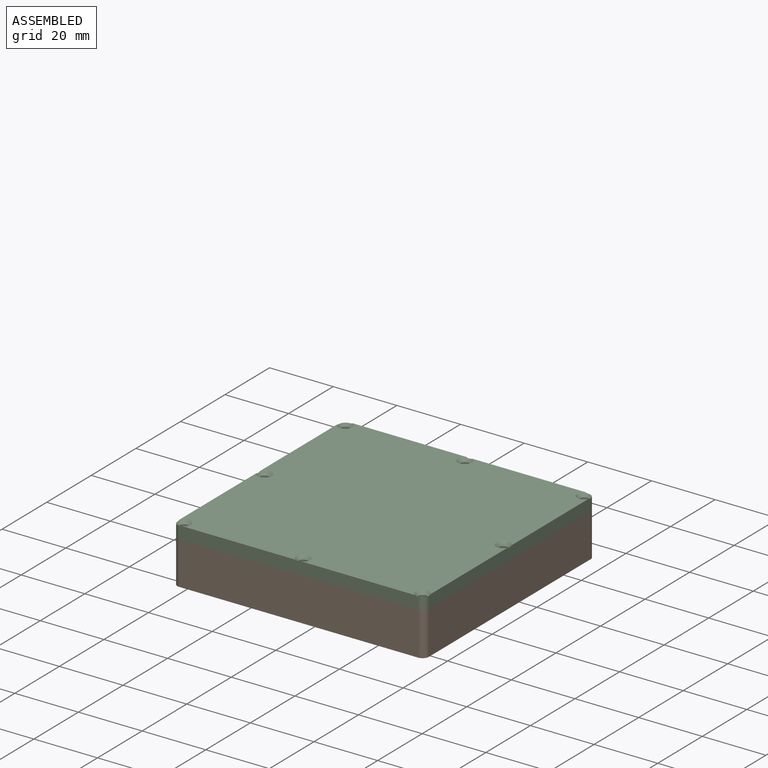
[diagram: assembled view]
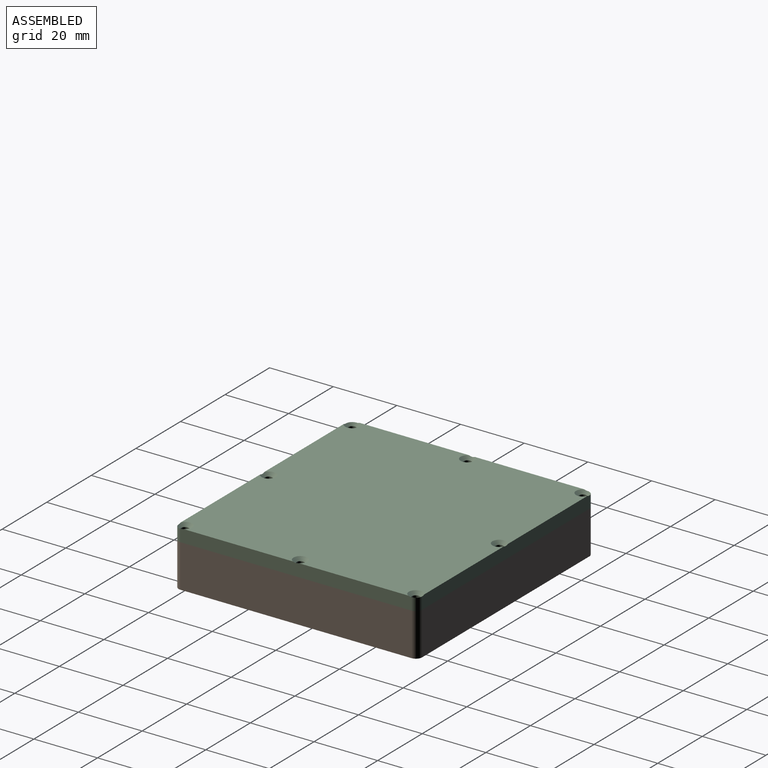
[diagram: assembled view, second angle]
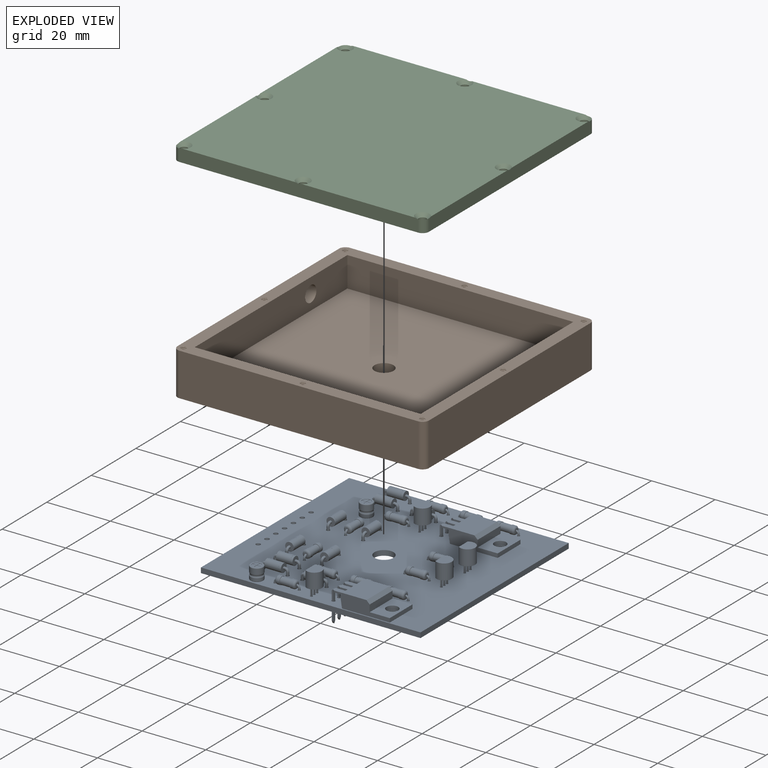
[diagram: exploded view]
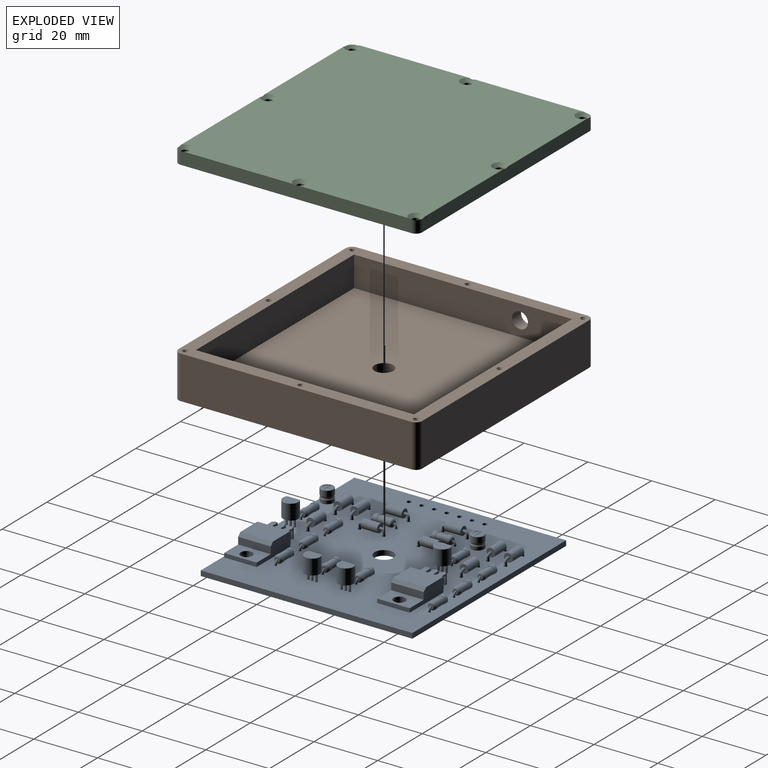
[diagram: exploded view, second angle]
FCSTD DOCUMENT  (FreeCAD 0.20R29603 (Git))
Label: case-v2
License: All rights reserved
LicenseURL: http://en.wikipedia.org/wiki/All_rights_reserved
objects: App::Link×25, Part::Feature×11, Sketcher::SketchObject×6, PartDesign::Hole×4, App::Part×4, PartDesign::Pad×2, PartDesign::Body×2, Mesh::Feature×2, Spreadsheet::Sheet×1, PartDesign::Thickness×1, PartDesign::Fillet×1, PartDesign::CoordinateSystem×1, PartDesign::ShapeBinder×1
note: 37 computed .brp shape members not serialized (recipe doc carries the construction recipe); baked Part::Feature solids carry a one-line shape summary decoded from their .brp

FEATURE [Sketcher::SketchObject] Sketch
  FullyConstrained = true
  MapMode = 5
  Support = -> [XY_Plane]
  expr: Constraints[8] = Spreadsheet.pcb_length + Spreadsheet.clearance * 2
  expr: Constraints[9] = Spreadsheet.pcb_width + Spreadsheet.clearance * 2
  sketch-geometry (4):
    g0: LineSegment StartX=-35.5 StartY=34.25 StartZ=0 EndX=35.5 EndY=34.25 EndZ=0
    g1: LineSegment StartX=35.5 StartY=34.25 StartZ=0 EndX=35.5 EndY=-34.25 EndZ=0
    g2: LineSegment StartX=35.5 StartY=-34.25 StartZ=0 EndX=-35.5 EndY=-34.25 EndZ=0
    g3: LineSegment StartX=-35.5 StartY=-34.25 StartZ=0 EndX=-35.5 EndY=34.25 EndZ=0
  constraints (10):
    c: Coincident(g0,g1)
    c: Coincident(g1,g2)
    c: Coincident(g2,g3)
    c: Coincident(g3,g0)
    c: Horizontal(g2)
    c: Vertical(g3)
    c: Symmetric(g0,g0,g-2)
    c: Symmetric(g0,g1,g-1)
    c: DistanceX(g0,g0) = 71
    c: DistanceY(g1,g0) = 68.5
FEATURE [Spreadsheet::Sheet] Spreadsheet
  cells = A1=pcb_length; B1(pcb_length)=69; A2=pcb_width; B2(pcb_width)=66.5; A3=pcb_tickness; B3(pcb_tickness)=1.7; A4=wall_tickness; B4(wall_tickness)=4; A5=clearance; B5(clearance)=1; A6=screw_hole; B6(screw_hole)=1; A7=screw_length; B7(screw_length)=10; A8=mount_hole; B8(mount_hole)=6; A9=top_component_height; B9(top_component_height)=5; A10=bottom_component_height; B10(bottom_component_height)=0.5; A11=wire_hole; B11(wire_hole)=5
FEATURE [PartDesign::Pad] Pad
  Direction = (0,0,1)
  Length = 9.5
  Length2 = 10
  Profile = -> Sketch
  ReferenceAxis = -> Sketch [N_Axis]
  Type = 0
  expr: Length = Spreadsheet.wall_tickness + Spreadsheet.bottom_component_height + Spreadsheet.top_component_height
FEATURE [PartDesign::Thickness] Thickness
  Base = -> Pad [Face6]
  BaseFeature = -> Pad
  Intersection = false
  Join = 1
  Mode = 0
  SupportTransform = false
  Value = 4
  expr: Value = Spreadsheet.wall_tickness
FEATURE [PartDesign::Fillet] Fillet
  Base = -> Thickness [Edge18,Edge17,Edge22,Edge20]
  BaseFeature = -> Thickness
  Radius = 2
  SupportTransform = false
  UseAllEdges = false
FEATURE [Sketcher::SketchObject] Sketch001
  ExternalGeometry = -> [Fillet]
  FullyConstrained = true
  MapMode = 5
  Placement = pos=(0,0,9.5) rot=(0,0,1;0rad)
  Support = -> [Fillet]
  expr: Constraints[0] = Spreadsheet.screw_hole
  expr: Constraints[15] = (Spreadsheet.pcb_width + Spreadsheet.wall_tickness + Spreadsheet.clearance * 2) / 2
  expr: Constraints[16] = (Spreadsheet.pcb_length + Spreadsheet.wall_tickness + Spreadsheet.clearance * 2) / 2
  expr: Constraints[17] = (Spreadsheet.pcb_length + Spreadsheet.wall_tickness + Spreadsheet.clearance * 2) / 2
  expr: Constraints[18] = (Spreadsheet.pcb_width + Spreadsheet.wall_tickness + Spreadsheet.clearance * 2) / 2
  sketch-geometry (8):
    g0: Circle CenterX=-37.5 CenterY=36.25 CenterZ=0 NormalX=0 NormalY=0 NormalZ=1 AngleXU=0 Radius=0.5
    g1: Circle CenterX=0 CenterY=36.25 CenterZ=0 NormalX=0 NormalY=0 NormalZ=1 AngleXU=0 Radius=0.5
    g2: Circle CenterX=37.5 CenterY=36.25 CenterZ=0 NormalX=0 NormalY=0 NormalZ=1 AngleXU=0 Radius=0.5
    g3: Circle CenterX=37.5 CenterY=0 CenterZ=0 NormalX=0 NormalY=0 NormalZ=1 AngleXU=0 Radius=0.5
    g4: Circle CenterX=37.5 CenterY=-36.25 CenterZ=0 NormalX=0 NormalY=0 NormalZ=1 AngleXU=0 Radius=0.5
    g5: Circle CenterX=0 CenterY=-36.25 CenterZ=0 NormalX=0 NormalY=0 NormalZ=1 AngleXU=0 Radius=0.5
    g6: Circle CenterX=-37.5 CenterY=-36.25 CenterZ=0 NormalX=0 NormalY=0 NormalZ=1 AngleXU=0 Radius=0.5
    g7: Circle CenterX=-37.5 CenterY=0 CenterZ=0 NormalX=0 NormalY=0 NormalZ=1 AngleXU=0 Radius=0.5
  constraints (19):
    c: Diameter(g0) = 1
    c: Equal(g0,g1)
    c: Equal(g1,g2)
    c: Equal(g2,g3)
    c: Equal(g3,g4)
    c: Equal(g4,g5)
    c: Equal(g5,g6)
    c: Equal(g6,g7)
    c: PointOnObject(g1,g-2)
    c: PointOnObject(g3,g-1)
    c: Symmetric(g5,g1,g-1)
    c: Symmetric(g7,g3,g-2)
    c: Symmetric(g0,g2,g-2)
    c: Symmetric(g2,g4,g-1)
    c: Symmetric(g4,g6,g-2)
    c: DistanceY(g-1,g1) = 36.25
    c: DistanceX(g7,g-1) = 37.5
    c: DistanceX(g0,g1) = 37.5
    c: DistanceY(g7,g0) = 36.25
FEATURE [PartDesign::Hole] Hole
  BaseFeature = -> Fillet
  CustomThreadClearance = 0
  Depth = 6
  DepthType = 0
  Diameter = 1.619
  DrillForDepth = false
  DrillPoint = 1
  DrillPointAngle = 118
  HoleCutCountersinkAngle = 90
  HoleCutCustomValues = false
  HoleCutDepth = 0
  HoleCutDiameter = 3.2
  HoleCutType = 0
  ModelThread = true
  Profile = -> Sketch001
  Tapered = false
  TaperedAngle = 90
  ThreadClass = 0
  ThreadDepth = 6
  ThreadDepthType = 0
  ThreadDirection = 0
  ThreadFit = 0
  ThreadSize = 6
  ThreadType = 1
  Threaded = true
  UseCustomThreadClearance = false
  expr: Depth = Spreadsheet.screw_length - Spreadsheet.wall_tickness
FEATURE [Sketcher::SketchObject] Sketch002
  FullyConstrained = true
  MapMode = 5
  Placement = pos=(-39.5,0,0) rot=(0.57735,-0.57735,-0.57735;2.0944rad)
  Support = -> [Hole]
  expr: Constraints[0] = (Spreadsheet.wall_tickness + Spreadsheet.top_component_height + Spreadsheet.bottom_component_height) / 2
  expr: Constraints[1] = (Spreadsheet.pcb_width + Spreadsheet.wall_tickness + Spreadsheet.clearance) / 4
  expr: Constraints[2] = Spreadsheet.wire_hole
  sketch-geometry (1):
    g0: Circle CenterX=-17.875 CenterY=4.75 CenterZ=0 NormalX=0 NormalY=0 NormalZ=1 AngleXU=0 Radius=2.5
  constraints (3):
    c: DistanceY(g-1,g0) = 4.75
    c: DistanceX(g0,g-1) = 17.875
    c: Diameter(g0) = 5
FEATURE [PartDesign::Hole] Hole001
  BaseFeature = -> Hole
  CustomThreadClearance = 0
  Depth = 4
  DepthType = 0
  Diameter = 5
  DrillForDepth = false
  DrillPoint = 1
  DrillPointAngle = 118
  HoleCutCountersinkAngle = 90
  HoleCutCustomValues = false
  HoleCutDepth = 0
  HoleCutDiameter = 10.1
  HoleCutType = 0
  ModelThread = false
  Profile = -> Sketch002
  Tapered = false
  TaperedAngle = 90
  ThreadClass = 0
  ThreadDepth = 4
  ThreadDepthType = 0
  ThreadDirection = 0
  ThreadFit = 0
  ThreadSize = 0
  ThreadType = 0
  Threaded = false
  UseCustomThreadClearance = false
  expr: Depth = Spreadsheet.wall_tickness
  expr: Diameter = Spreadsheet.wire_hole
FEATURE [PartDesign::CoordinateSystem] Local_CS_c8d7
  AttacherType = Attacher::AttachEngine3D
  MapMode = 2
  Support = -> [X_Axis001]
FEATURE [Part::Feature] Pcb_c8d7
  Placement = pos=(-145.75,97.75,0) rot=(0,0,1;0rad)
  shape: bbox 69 x 66.5 x 1.6 mm, 82 faces (baked)
FEATURE [Sketcher::SketchObject] PCB_Sketch_c8d7
  FullyConstrained = false
  sketch-geometry (4):
    g0: LineSegment StartX=-34.25 StartY=33.25 StartZ=0 EndX=34.75 EndY=33.25 EndZ=0
    g1: LineSegment StartX=34.75 StartY=33.25 StartZ=0 EndX=34.75 EndY=-33.25 EndZ=0
    g2: LineSegment StartX=34.75 StartY=-33.25 StartZ=0 EndX=-34.25 EndY=-33.25 EndZ=0
    g3: LineSegment StartX=-34.25 StartY=-33.25 StartZ=0 EndX=-34.25 EndY=33.25 EndZ=0
  constraints (4):
    c: Coincident(g2,g3)
    c: Coincident(g0,g3)
    c: Coincident(g1,g2)
    c: Coincident(g0,g1)
FEATURE [Part::Feature] topPads_c8d7_  label="topPads_c8d7_cut"
  Placement = pos=(0,0,0.02) rot=(0,0,1;0rad)
  shape: bbox 55.45 x 62.66 x 2e-07 mm, 78 faces, 0 solids (baked)
FEATURE [Part::Feature] Shape005001  label="topTracks_c8d7"
  Placement = pos=(-145.75,97.75,0.01) rot=(0,0,1;0rad)
  shape: bbox 57 x 63.75 x 2e-07 mm, 30 faces, 0 solids (baked)
FEATURE [Part::Feature] pads_area002001  label="botPads_c8d7"
  Placement = pos=(-145.75,97.75,-1.62) rot=(0,0,1;0rad)
  shape: bbox 55.45 x 62.66 x 2e-07 mm, 78 faces, 0 solids (baked)
FEATURE [Part::Feature] Shape005002001  label="botTracks_c8d7"
  Placement = pos=(-145.75,97.75,-1.61) rot=(0,0,1;0rad)
  shape: bbox 50 x 58.71 x 2e-07 mm, 4 faces, 0 solids (baked)
FEATURE [Part::Feature] zones_area001  label="botZones_c8d7"
  Placement = pos=(-145.75,97.75,-1.61) rot=(0,0,1;0rad)
  shape: bbox 69.05 x 66.55 x 2e-07 mm, 1 faces, 0 solids (baked)
FEATURE [App::Part] Board_Geoms_c8d7
  Group = -> [Pcb_c8d7,PCB_Sketch_c8d7,topPads_c8d7_,Shape005001,pads_area002001,Shape005002001,zones_area001]
  Origin = -> Origin006
FEATURE [Part::Feature] Shape  label="R3_R_Axial_DIN0207_L63mm_D25mm_P762mm_Horizontal_1e18375bcd3e"
  Placement = pos=(-8.08,29.46,0) rot=(0,0,1;0rad)
  shape: bbox 8.418 x 2.706 x 5.603 mm, 15 faces (baked)
FEATURE [Part::Feature] Shape001  label="Q1_TO-220-3_Horizontal_TabDown_f7af02cd9c6e"
  Placement = pos=(5.5,23,0) rot=(0,0,-1;1.5708rad)
  shape: bbox 19.74 x 10.25 x 10.78 mm, 80 faces (baked)
FEATURE [Part::Feature] Shape002  label="D6_D_DO-41_SOD81_P7.62mm_Horizontal_46b4c7cf1055"
  Placement = pos=(-13.12,-24.5,0) rot=(0,0,1;3.14159rad)
  shape: bbox 8.618 x 2.72 x 5.71 mm, 15 faces (baked)
FEATURE [App::Link] Q1_TO_220_3_Horizontal_TabDown_f7af02cd9c6e_ln_  label="Q4_TO-220-3_Horizontal_TabDown_02366ac9f945"
  LinkPlacement = pos=(5.34,-25.21,0) rot=(0,0,-1;1.5708rad)
  LinkedObject = -> Shape001
  Placement = pos=(5.34,-25.21,0) rot=(0,0,-1;1.5708rad)
FEATURE [App::Link] R3_R_Axial_DIN0207_L63mm_D25mm_P762mm_Horizontal_1e18375bcd3e_ln_  label="R11_R_Axial_DIN0207_L63mm_D25mm_P762mm_Horizontal_3a0907cc9882"
  LinkPlacement = pos=(10.94,4.25,0) rot=(0,0,1;0rad)
  LinkedObject = -> Shape
  Placement = pos=(10.94,4.25,0) rot=(0,0,1;0rad)
FEATURE [App::Link] D6_D_DO_41_SOD81_P7_62mm_Horizontal_46b4c7cf1055_ln_  label="D4_D_DO-41_SOD81_P7.62mm_Horizontal_83c747f65dec"
  LinkPlacement = pos=(-9.5,4.19,0) rot=(0,0,1;1.5708rad)
  LinkedObject = -> Shape002
  Placement = pos=(-9.5,4.19,0) rot=(0,0,1;1.5708rad)
FEATURE [Part::Feature] Shape003  label="Q6_TO-92_Inline_Narrow_4295cf9a86ac"
  Placement = pos=(23.25,-4.96,0) rot=(0,0,-1;1.5708rad)
  shape: bbox 3.745 x 4.83 x 9.8 mm, 19 faces (baked)
FEATURE [App::Link] D6_D_DO_41_SOD81_P7_62mm_Horizontal_46b4c7cf1055_ln_001  label="D9_D_DO-41_SOD81_P7.62mm_Horizontal_01c451956be8"
  LinkPlacement = pos=(-20.5,-6.69,0) rot=(0,0,-1;1.5708rad)
  LinkedObject = -> Shape002
  Placement = pos=(-20.5,-6.69,0) rot=(0,0,-1;1.5708rad)
FEATURE [App::Link] R3_R_Axial_DIN0207_L63mm_D25mm_P762mm_Horizontal_1e18375bcd3e_ln_001  label="R4_R_Axial_DIN0207_L63mm_D25mm_P762mm_Horizontal_c26d8823b796"
  LinkPlacement = pos=(-12.39,17.96,0) rot=(0,0,1;0rad)
  LinkedObject = -> Shape
  Placement = pos=(-12.39,17.96,0) rot=(0,0,1;0rad)
FEATURE [App::Link] Q6_TO_92_Inline_Narrow_4295cf9a86ac_ln_  label="Q2_TO-92_Inline_Narrow_b1d82febfd42"
  LinkPlacement = pos=(-0.52,19.25,0) rot=(0,0,-1;1.5708rad)
  LinkedObject = -> Shape003
  Placement = pos=(-0.52,19.25,0) rot=(0,0,-1;1.5708rad)
FEATURE [App::Link] Q6_TO_92_Inline_Narrow_4295cf9a86ac_ln_001  label="Q3_TO-92_Inline_Narrow_eaa337063381"
  LinkPlacement = pos=(-0.93,-28.71,0) rot=(0,0,-1;1.5708rad)
  LinkedObject = -> Shape003
  Placement = pos=(-0.93,-28.71,0) rot=(0,0,-1;1.5708rad)
FEATURE [App::Link] D6_D_DO_41_SOD81_P7_62mm_Horizontal_46b4c7cf1055_ln_002  label="D7_D_DO-41_SOD81_P7.62mm_Horizontal_83cfbd3a0cc8"
  LinkPlacement = pos=(-13.12,-19.25,0) rot=(0,0,1;3.14159rad)
  LinkedObject = -> Shape002
  Placement = pos=(-13.12,-19.25,0) rot=(0,0,1;3.14159rad)
FEATURE [App::Link] R3_R_Axial_DIN0207_L63mm_D25mm_P762mm_Horizontal_1e18375bcd3e_ln_002  label="R2_R_Axial_DIN0207_L63mm_D25mm_P762mm_Horizontal_af5f3716a1f1"
  LinkPlacement = pos=(3.05,29.46,0) rot=(0,0,1;0rad)
  LinkedObject = -> Shape
  Placement = pos=(3.05,29.46,0) rot=(0,0,1;0rad)
FEATURE [Part::Feature] Shape004  label="C1_CP_Radial_D40mm_P150mm_bc90b0e69caf"
  Placement = pos=(-17.52,17.9326,0) rot=(0,0,-1;1.5708rad)
  shape: bbox 5.212 x 4.924 x 6 mm, 54 faces (baked)
FEATURE [App::Link] D6_D_DO_41_SOD81_P7_62mm_Horizontal_46b4c7cf1055_ln_003  label="D5_D_DO-41_SOD81_P7.62mm_Horizontal_116156a9d47f"
  LinkPlacement = pos=(-9.5,-6.69,0) rot=(0,0,-1;1.5708rad)
  LinkedObject = -> Shape002
  Placement = pos=(-9.5,-6.69,0) rot=(0,0,-1;1.5708rad)
FEATURE [App::Link] D6_D_DO_41_SOD81_P7_62mm_Horizontal_46b4c7cf1055_ln_004  label="D1_D_DO-41_SOD81_P7.62mm_Horizontal_71b091f2c2fb"
  LinkPlacement = pos=(-12.52,29.46,0) rot=(0,0,1;3.14159rad)
  LinkedObject = -> Shape002
  Placement = pos=(-12.52,29.46,0) rot=(0,0,1;3.14159rad)
FEATURE [App::Link] D6_D_DO_41_SOD81_P7_62mm_Horizontal_46b4c7cf1055_ln_005  label="D2_D_DO-41_SOD81_P7.62mm_Horizontal_aa6658375ccc"
  LinkPlacement = pos=(-12.46,23.96,0) rot=(0,0,1;3.14159rad)
  LinkedObject = -> Shape002
  Placement = pos=(-12.46,23.96,0) rot=(0,0,1;3.14159rad)
FEATURE [App::Link] R3_R_Axial_DIN0207_L63mm_D25mm_P762mm_Horizontal_1e18375bcd3e_ln_003  label="R5_R_Axial_DIN0207_L63mm_D25mm_P762mm_Horizontal_b70b3c014e7c"
  LinkPlacement = pos=(-15,4.19,0) rot=(0,0,1;1.5708rad)
  LinkedObject = -> Shape
  Placement = pos=(-15,4.19,0) rot=(0,0,1;1.5708rad)
FEATURE [App::Link] R3_R_Axial_DIN0207_L63mm_D25mm_P762mm_Horizontal_1e18375bcd3e_ln_004  label="R8_R_Axial_DIN0207_L63mm_D25mm_P762mm_Horizontal_a237eb8067c1"
  LinkPlacement = pos=(-13.24,-29.98,0) rot=(0,0,1;0rad)
  LinkedObject = -> Shape
  Placement = pos=(-13.24,-29.98,0) rot=(0,0,1;0rad)
FEATURE [App::Link] D6_D_DO_41_SOD81_P7_62mm_Horizontal_46b4c7cf1055_ln_006  label="D8_D_DO-41_SOD81_P7.62mm_Horizontal_8c57185707b7"
  LinkPlacement = pos=(-8.49,-24.5,0) rot=(0,0,1;0rad)
  LinkedObject = -> Shape002
  Placement = pos=(-8.49,-24.5,0) rot=(0,0,1;0rad)
FEATURE [App::Link] R3_R_Axial_DIN0207_L63mm_D25mm_P762mm_Horizontal_1e18375bcd3e_ln_005  label="R7_R_Axial_DIN0207_L63mm_D25mm_P762mm_Horizontal_04880ca75601"
  LinkPlacement = pos=(-8.49,-19.25,0) rot=(0,0,1;0rad)
  LinkedObject = -> Shape
  Placement = pos=(-8.49,-19.25,0) rot=(0,0,1;0rad)
FEATURE [App::Link] D6_D_DO_41_SOD81_P7_62mm_Horizontal_46b4c7cf1055_ln_007  label="D3_D_DO-41_SOD81_P7.62mm_Horizontal_6566e7aa2dd4"
  LinkPlacement = pos=(-8.08,23.96,0) rot=(0,0,1;0rad)
  LinkedObject = -> Shape002
  Placement = pos=(-8.08,23.96,0) rot=(0,0,1;0rad)
FEATURE [App::Link] R3_R_Axial_DIN0207_L63mm_D25mm_P762mm_Horizontal_1e18375bcd3e_ln_006  label="R12_R_Axial_DIN0207_L63mm_D25mm_P762mm_Horizontal_f3dff05b9fc6"
  LinkPlacement = pos=(10.94,-6.25,0) rot=(0,0,1;0rad)
  LinkedObject = -> Shape
  Placement = pos=(10.94,-6.25,0) rot=(0,0,1;0rad)
FEATURE [App::Link] R3_R_Axial_DIN0207_L63mm_D25mm_P762mm_Horizontal_1e18375bcd3e_ln_007  label="R10_R_Axial_DIN0207_L63mm_D25mm_P762mm_Horizontal_d2c18f2fd916"
  LinkPlacement = pos=(13.45,-19.25,0) rot=(0,0,1;0rad)
  LinkedObject = -> Shape
  Placement = pos=(13.45,-19.25,0) rot=(0,0,1;0rad)
FEATURE [App::Link] R3_R_Axial_DIN0207_L63mm_D25mm_P762mm_Horizontal_1e18375bcd3e_ln_008  label="R1_R_Axial_DIN0207_L63mm_D25mm_P762mm_Horizontal_7ae7692dc5d3"
  LinkPlacement = pos=(14.05,29.46,0) rot=(0,0,1;0rad)
  LinkedObject = -> Shape
  Placement = pos=(14.05,29.46,0) rot=(0,0,1;0rad)
FEATURE [App::Link] R3_R_Axial_DIN0207_L63mm_D25mm_P762mm_Horizontal_1e18375bcd3e_ln_009  label="R6_R_Axial_DIN0207_L63mm_D25mm_P762mm_Horizontal_38b9a4ad471c"
  LinkPlacement = pos=(-15,-6.69,0) rot=(0,0,-1;1.5708rad)
  LinkedObject = -> Shape
  Placement = pos=(-15,-6.69,0) rot=(0,0,-1;1.5708rad)
FEATURE [App::Link] Q6_TO_92_Inline_Narrow_4295cf9a86ac_ln_002  label="Q5_TO-92_Inline_Narrow_467efc66c74b"
  LinkPlacement = pos=(23.25,5.54,0) rot=(0,0,-1;1.5708rad)
  LinkedObject = -> Shape003
  Placement = pos=(23.25,5.54,0) rot=(0,0,-1;1.5708rad)
FEATURE [App::Link] R3_R_Axial_DIN0207_L63mm_D25mm_P762mm_Horizontal_1e18375bcd3e_ln_010  label="R9_R_Axial_DIN0207_L63mm_D25mm_P762mm_Horizontal_b4799f0ccb3a"
  LinkPlacement = pos=(2.6,-19.2,0) rot=(0,0,1;0rad)
  LinkedObject = -> Shape
  Placement = pos=(2.6,-19.2,0) rot=(0,0,1;0rad)
FEATURE [App::Link] D6_D_DO_41_SOD81_P7_62mm_Horizontal_46b4c7cf1055_ln_008  label="D10_D_DO-41_SOD81_P7.62mm_Horizontal_64ace328d858"
  LinkPlacement = pos=(-20.5,4.19,0) rot=(0,0,1;1.5708rad)
  LinkedObject = -> Shape002
  Placement = pos=(-20.5,4.19,0) rot=(0,0,1;1.5708rad)
FEATURE [App::Link] C1_CP_Radial_D40mm_P150mm_bc90b0e69caf_ln_  label="C2_CP_Radial_D40mm_P150mm_d567f8db9309"
  LinkPlacement = pos=(-18.43,-30,0) rot=(0,0,-1;1.5708rad)
  LinkedObject = -> Shape004
  Placement = pos=(-18.43,-30,0) rot=(0,0,-1;1.5708rad)
FEATURE [App::Part] Top_c8d7
  Group = -> [Shape,Shape001,Shape002,Q1_TO_220_3_Horizontal_TabDown_f7af02cd9c6e_ln_,R3_R_Axial_DIN0207_L63mm_D25mm_P762mm_Horizontal_1e18375bcd3e_ln_,D6_D_DO_41_SOD81_P7_62mm_Horizontal_46b4c7cf1055_ln_,Shape003,D6_D_DO_41_SOD81_P7_62mm_Horizontal_46b4c7cf1055_ln_001,R3_R_Axial_DIN0207_L63mm_D25mm_P762mm_Horizontal_1e18375bcd3e_ln_001,Q6_TO_92_Inline_Narrow_4295cf9a86ac_ln_,+20 more]
  Origin = -> Origin003
FEATURE [App::Part] Step_Models_c8d7
  Group = -> [Top_c8d7]
  Origin = -> Origin002
FEATURE [App::Part] Board_c8d7  label="side-markers-blinker"
  Group = -> [Local_CS_c8d7,Board_Geoms_c8d7,Step_Models_c8d7]
  Origin = -> Origin001
  Placement = pos=(0,0,0.5) rot=(0,0,1;0rad)
  expr: .Placement.Base.z = Spreadsheet.bottom_component_height
FEATURE [Sketcher::SketchObject] Sketch006
  FullyConstrained = true
  MapMode = 5
  Support = -> [XY_Plane]
  expr: Constraints[1] = Spreadsheet.mount_hole
  sketch-geometry (1):
    g0: Circle CenterX=0 CenterY=0 CenterZ=0 NormalX=0 NormalY=0 NormalZ=1 AngleXU=0 Radius=3
  constraints (2):
    c: Coincident(g0,g-1)
    c: Diameter(g0) = 6
FEATURE [PartDesign::Hole] Hole005
  BaseFeature = -> Hole001
  CustomThreadClearance = 0
  Depth = 4
  DepthType = 0
  Diameter = 6
  DrillForDepth = false
  DrillPoint = 1
  DrillPointAngle = 118
  HoleCutCountersinkAngle = 90
  HoleCutCustomValues = false
  HoleCutDepth = 0
  HoleCutDiameter = 6.1
  HoleCutType = 0
  ModelThread = false
  Profile = -> Sketch006
  Tapered = false
  TaperedAngle = 90
  ThreadClass = 0
  ThreadDepth = 4
  ThreadDepthType = 0
  ThreadDirection = 0
  ThreadFit = 0
  ThreadSize = 0
  ThreadType = 0
  Threaded = false
  UseCustomThreadClearance = false
  expr: Depth = Spreadsheet.wall_tickness
  expr: Diameter = Spreadsheet.mount_hole
FEATURE [PartDesign::Body] Body  label="Base"
  Group = -> [Sketch,Pad,Thickness,Fillet,Sketch001,Hole,Sketch002,Hole001,Sketch006,Hole005]
  Origin = -> Origin
  Tip = -> Hole005
FEATURE [PartDesign::ShapeBinder] ShapeBinder
  Support = -> [Hole005]
  TraceSupport = false
FEATURE [PartDesign::Pad] Pad001
  Direction = (0,0,1)
  Length = 4
  Length2 = 10
  Profile = -> ShapeBinder
  Type = 0
  expr: Length = Spreadsheet.wall_tickness
FEATURE [Sketcher::SketchObject] Sketch005
  ExternalGeometry = -> [Pad001]
  FullyConstrained = true
  MapMode = 5
  Placement = pos=(0,0,13.5) rot=(0,0,1;0rad)
  Support = -> [Pad001]
  expr: Constraints[15] = (Spreadsheet.pcb_length + Spreadsheet.wall_tickness + Spreadsheet.clearance * 2) / 2
  expr: Constraints[16] = (Spreadsheet.pcb_width + Spreadsheet.wall_tickness + Spreadsheet.clearance * 2) / 2
  expr: Constraints[17] = Spreadsheet.wall_tickness / 2
  expr: Constraints[18] = Spreadsheet.wall_tickness / 2
  expr: Constraints[2] = Spreadsheet.screw_hole
  sketch-geometry (8):
    g0: Circle CenterX=-37.5 CenterY=36.25 CenterZ=0 NormalX=0 NormalY=0 NormalZ=1 AngleXU=0 Radius=0.5
    g1: Circle CenterX=0 CenterY=36.25 CenterZ=0 NormalX=0 NormalY=0 NormalZ=1 AngleXU=0 Radius=0.5
    g2: Circle CenterX=37.5 CenterY=36.25 CenterZ=0 NormalX=0 NormalY=0 NormalZ=1 AngleXU=0 Radius=0.5
    g3: Circle CenterX=37.5 CenterY=0 CenterZ=0 NormalX=0 NormalY=0 NormalZ=1 AngleXU=0 Radius=0.5
    g4: Circle CenterX=37.5 CenterY=-36.25 CenterZ=0 NormalX=0 NormalY=0 NormalZ=1 AngleXU=0 Radius=0.5
    g5: Circle CenterX=0 CenterY=-36.25 CenterZ=0 NormalX=0 NormalY=0 NormalZ=1 AngleXU=0 Radius=0.5
    g6: Circle CenterX=-37.5 CenterY=-36.25 CenterZ=0 NormalX=0 NormalY=0 NormalZ=1 AngleXU=0 Radius=0.5
    g7: Circle CenterX=-37.5 CenterY=0 CenterZ=0 NormalX=0 NormalY=0 NormalZ=1 AngleXU=0 Radius=0.5
  constraints (19):
    c: PointOnObject(g1,g-2)
    c: PointOnObject(g3,g-1)
    c: Diameter(g0) = 1
    c: Equal(g0,g1)
    c: Equal(g1,g2)
    c: Equal(g2,g3)
    c: Equal(g3,g4)
    c: Equal(g4,g5)
    c: Equal(g5,g6)
    c: Equal(g6,g7)
    c: Symmetric(g0,g2,g-2)
    c: Symmetric(g4,g2,g-1)
    c: Symmetric(g6,g4,g-2)
    c: Symmetric(g7,g3,g-2)
    c: Symmetric(g1,g5,g-1)
    c: DistanceX(g7,g-1) = 37.5
    c: DistanceY(g-1,g1) = 36.25
    c: DistanceY(g-4,g6) = 2
    c: DistanceX(g-3,g6) = 2
FEATURE [PartDesign::Hole] Hole004
  BaseFeature = -> Pad001
  CustomThreadClearance = 0
  Depth = 4
  DepthType = 0
  Diameter = 2.4
  DrillForDepth = false
  DrillPoint = 1
  DrillPointAngle = 118
  HoleCutCountersinkAngle = 90
  HoleCutCustomValues = false
  HoleCutDepth = 0
  HoleCutDiameter = 4.4
  HoleCutType = 13
  ModelThread = false
  Profile = -> Sketch005
  Tapered = false
  TaperedAngle = 90
  ThreadClass = 0
  ThreadDepth = 4
  ThreadDepthType = 0
  ThreadDirection = 0
  ThreadFit = 0
  ThreadSize = 6
  ThreadType = 1
  Threaded = false
  UseCustomThreadClearance = false
  expr: Depth = Spreadsheet.wall_tickness
  expr: Diameter = 1
FEATURE [PartDesign::Body] Body001  label="Cover"
  Group = -> [ShapeBinder,Pad001,Sketch005,Hole004]
  Origin = -> Origin005
  Tip = -> Hole004
FEATURE [Mesh::Feature] Mesh  label="Base-mesh"
FEATURE [Mesh::Feature] Mesh001  label="Cover-mesh"
